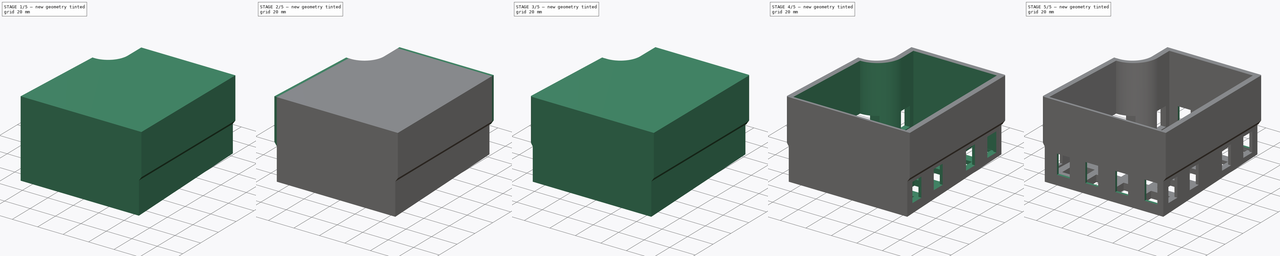
[diagram: build sequence overview — one tinted view per stage of 5, left to right]
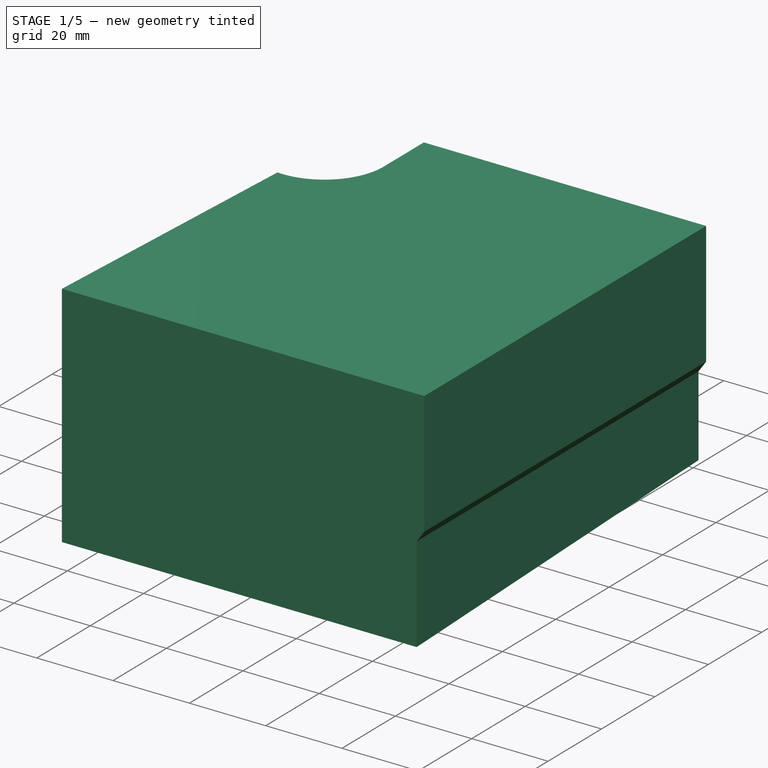
[diagram: stage 1 of 5 — iso view after this stage's code; geometry added in this stage tinted green]
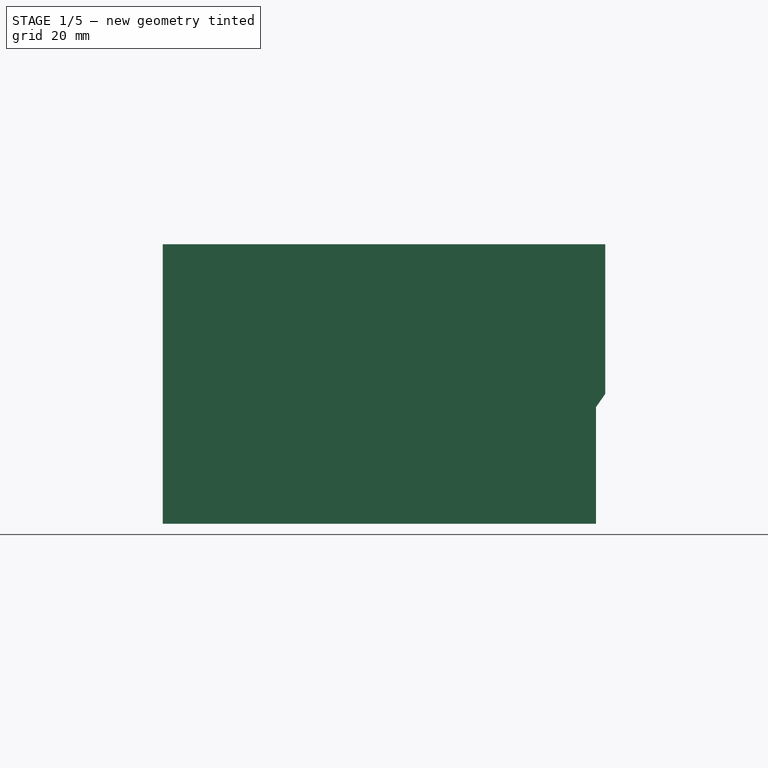
[diagram: stage 1 of 5 — front view after this stage's code; geometry added in this stage tinted green]
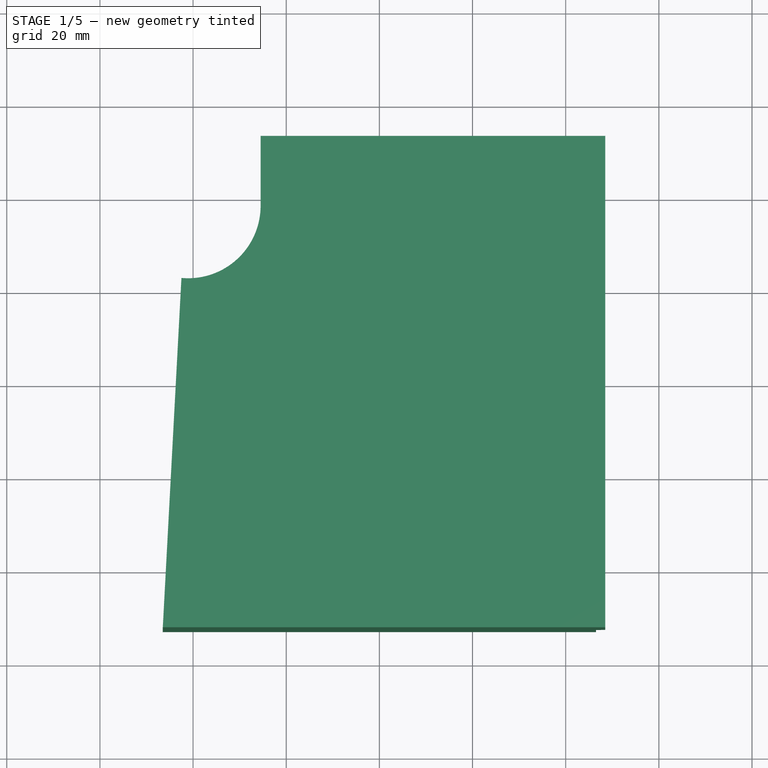
[diagram: stage 1 of 5 — top view after this stage's code; geometry added in this stage tinted green]
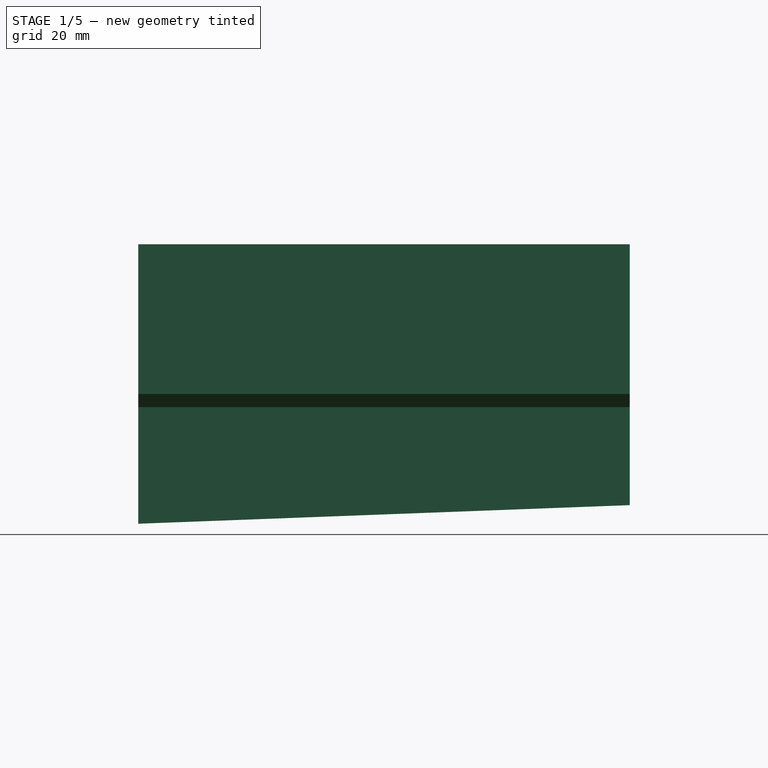
[diagram: stage 1 of 5 — right view after this stage's code; geometry added in this stage tinted green]
FCSTD DOCUMENT  (FreeCAD 0.16R6703 (Git))
Label: Essenza-Bucket-v3
License: FreeArt
LicenseURL: http://artlibre.org/licence/lal
objects: Sketcher::SketchObject×13, PartDesign::Pocket×9, PartDesign::Pad×4, PartDesign::Fillet×4
note: 43 computed .brp shape members not serialized (recipe doc carries the construction recipe); baked Part::Feature solids carry a one-line shape summary decoded from their .brp

FEATURE [Sketcher::SketchObject] Sketch
  sketch-geometry (6):
    g0: LineSegment StartX=-46.5 StartY=-52.75 StartZ=0 EndX=46.5 EndY=-52.75 EndZ=0
    g1: LineSegment StartX=46.5 StartY=-52.75 StartZ=0 EndX=46.5 EndY=52.75 EndZ=0
    g2: LineSegment StartX=46.5 StartY=52.75 StartZ=0 EndX=-25.5 EndY=52.75 EndZ=0
    g3: LineSegment StartX=-25.5 StartY=52.75 StartZ=0 EndX=-25.5 EndY=37.75 EndZ=0
    g4: ArcOfCircle CenterX=-41.0701 CenterY=37.7543 CenterZ=0 NormalX=0 NormalY=0 NormalZ=1 Radius=15.5701 StartAngle=4.62042 EndAngle=6.28291
    g5: LineSegment StartX=-42.5 StartY=22.25 StartZ=0 EndX=-46.5 EndY=-52.75 EndZ=0
  constraints (19):
    c: Horizontal(g0)
    c: Coincident(g0,g1)
    c: Vertical(g1)
    c: Coincident(g1,g2)
    c: Horizontal(g2)
    c: DistanceY(g0,g4) = 75
    c: DistanceX(g0,g0) = 93
    c: DistanceY(g1,g1) = 105.5
    c: DistanceX(g2,g2) = 72
    c: Symmetric(g0,g0,g-2)
    c: Symmetric(g1,g0,g-1)
    c: Vertical(g3)
    c: DistanceY(g3,g3) = 15
    c: Coincident(g4,g3)
    c: Coincident(g2,g3)
    c: Coincident(g5,g4)
    c: Coincident(g5,g0)
    c: Distance(g4,g1) = 89
    c: Radius(g4) = 15.5701
FEATURE [PartDesign::Pad] Pad
  Length = 60
  Length2 = 100
  Sketch = -> Sketch
  Type = 0
FEATURE [Sketcher::SketchObject] Sketch001
  Placement = pos=(46.5,0,0) rot=(0.57735,0.57735,0.57735;2.0944rad)
  Support = -> Pad [Face2]
  sketch-geometry (3):
    g0: LineSegment StartX=-52.7445 StartY=0 StartZ=0 EndX=52.9536 EndY=0 EndZ=0
    g1: LineSegment StartX=52.9536 StartY=0 StartZ=0 EndX=52.9536 EndY=4 EndZ=0
    g2: LineSegment StartX=52.9536 StartY=4 StartZ=0 EndX=-52.7445 EndY=0 EndZ=0
  constraints (7):
    c: PointOnObject(g0,g-1)
    c: PointOnObject(g0,g-1)
    c: Coincident(g0,g1)
    c: Vertical(g1)
    c: Coincident(g1,g2)
    c: Coincident(g2,g0)
    c: DistanceY(g1,g1) = 4
FEATURE [PartDesign::Pocket] Pocket
  Length = 5
  Sketch = -> Sketch001
  Type = 1
FEATURE [Sketcher::SketchObject] Sketch002
  Placement = pos=(0,-52.75,0) rot=(1,0,0;1.5708rad)
  Support = -> Pocket [Face1]
  sketch-geometry (4):
    g0: LineSegment StartX=46.4821 StartY=60 StartZ=0 EndX=46.4821 EndY=25 EndZ=0
    g1: LineSegment StartX=46.4821 StartY=25 StartZ=0 EndX=48.4821 EndY=27.8563 EndZ=0
    g2: LineSegment StartX=48.4821 StartY=27.8563 StartZ=0 EndX=48.4821 EndY=60 EndZ=0
    g3: LineSegment StartX=48.4821 StartY=60 StartZ=0 EndX=46.4821 EndY=60 EndZ=0
  constraints (12):
    c: Vertical(g0)
    c: Coincident(g0,g1)
    c: Coincident(g1,g2)
    c: Vertical(g2)
    c: Coincident(g2,g3)
    c: Horizontal(g3)
    c: Coincident(g0,g3)
    c: DistanceY(g-1,g0) = 60
    c: DistanceX(g-2,g0) = 46.4821
    c: DistanceY(g0,g0) = 35
    c: Angle(g1,g0) = 0.610865
    c: DistanceX(g3,g3) = 2
FEATURE [PartDesign::Pad] Pad001
  Length = 10
  Length2 = 100
  Reversed = true
  Sketch = -> Sketch002
  Type = 3
  UpToFace = -> Pocket [Face8]
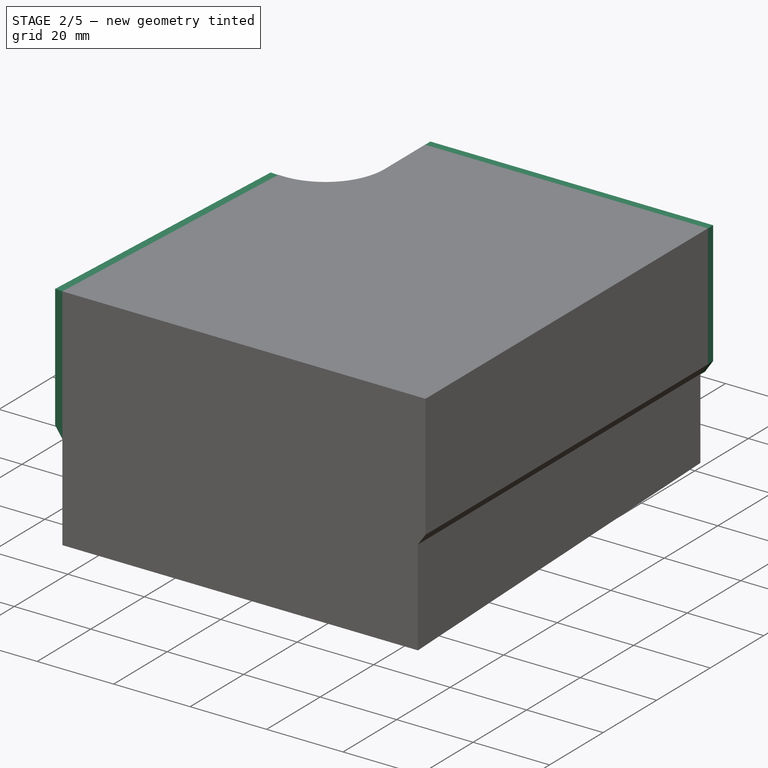
[diagram: stage 2 of 5 — iso view after this stage's code; geometry added in this stage tinted green]
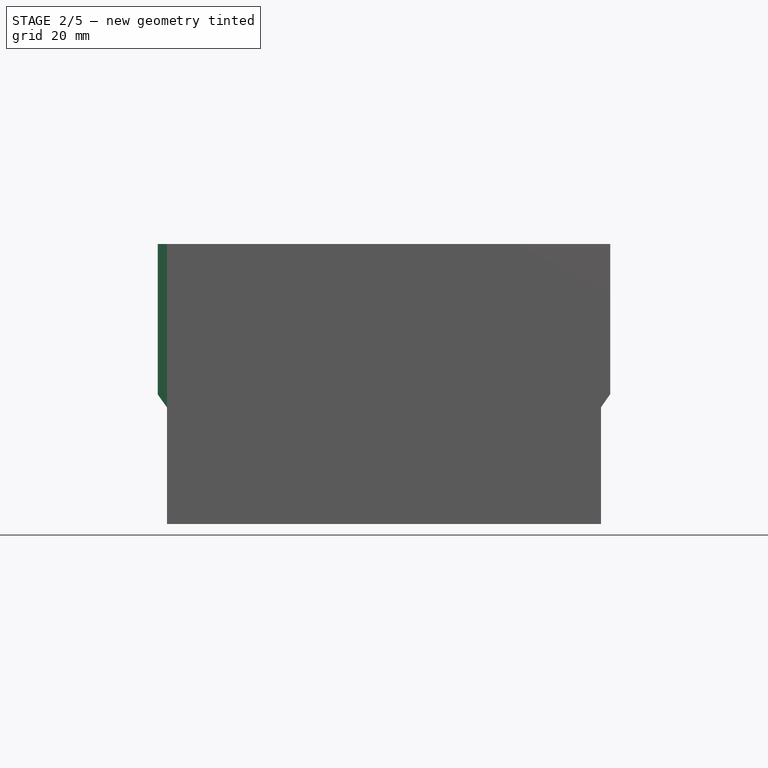
[diagram: stage 2 of 5 — front view after this stage's code; geometry added in this stage tinted green]
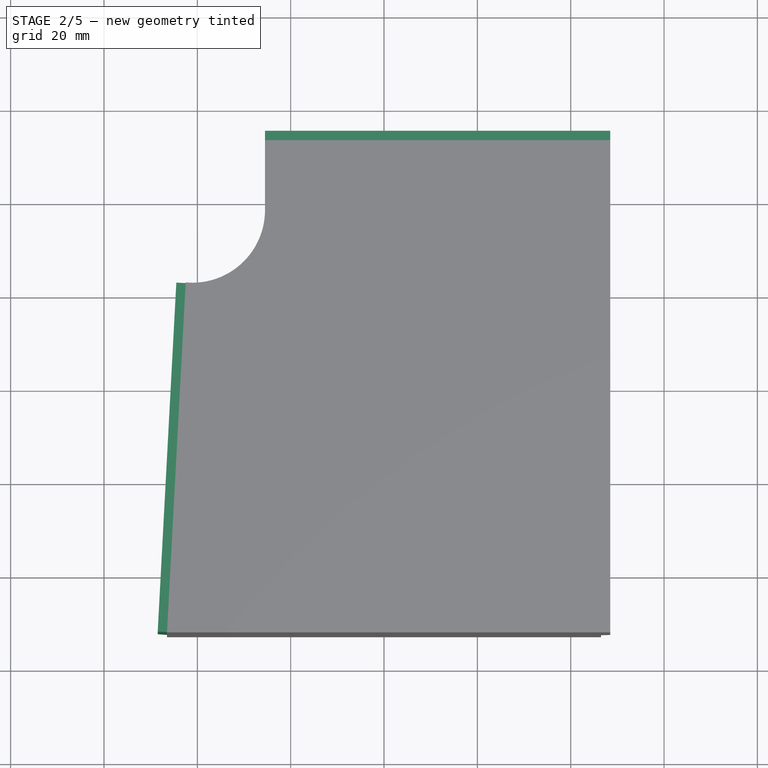
[diagram: stage 2 of 5 — top view after this stage's code; geometry added in this stage tinted green]
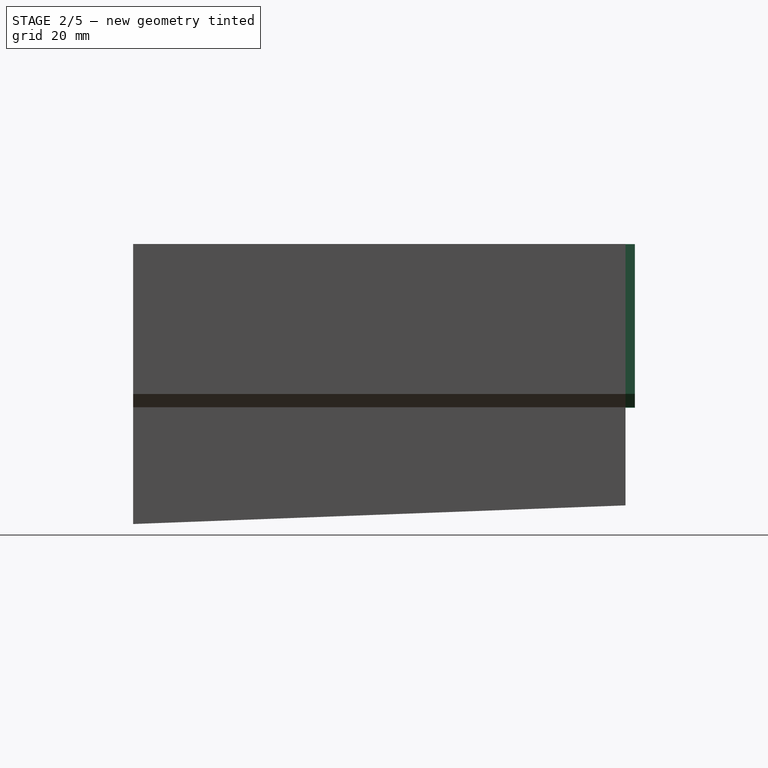
[diagram: stage 2 of 5 — right view after this stage's code; geometry added in this stage tinted green]
FEATURE [Sketcher::SketchObject] Sketch003
  Placement = pos=(-43.5628,2.32335,0) rot=(-0.556845,0.587335,0.587335;4.15776rad)
  Support = -> Pad001 [Face4]
  sketch-geometry (4):
    g0: LineSegment StartX=-19.8087 StartY=60 StartZ=0 EndX=55.0913 EndY=60 EndZ=0
    g1: LineSegment StartX=55.0913 StartY=60 StartZ=0 EndX=55.0913 EndY=25 EndZ=0
    g2: LineSegment StartX=55.0913 StartY=25 StartZ=0 EndX=-19.8087 EndY=25 EndZ=0
    g3: LineSegment StartX=-19.8087 StartY=25 StartZ=0 EndX=-19.8087 EndY=60 EndZ=0
  constraints (12):
    c: Coincident(g0,g1)
    c: Coincident(g1,g2)
    c: Coincident(g2,g3)
    c: Coincident(g3,g0)
    c: Horizontal(g0)
    c: Horizontal(g2)
    c: Vertical(g1)
    c: Vertical(g3)
    c: Equal(g1,g3)
    c: DistanceY(g1,g1) = 35
    c: DistanceY(g-1,g0) = 60
    c: DistanceX(g0,g0) = 74.9
FEATURE [PartDesign::Pad] Pad002
  Length = 2
  Length2 = 100
  Sketch = -> Sketch003
  Type = 0
FEATURE [Sketcher::SketchObject] Sketch004
  Placement = pos=(-2.93403,-55.0131,0) rot=(0.999291,-0.026629,-0.026629;1.57151rad)
  Support = -> Pad002 [Face11]
  sketch-geometry (4):
    g0: LineSegment StartX=-43.6049 StartY=24.9467 StartZ=0 EndX=-43.6049 EndY=27.8525 EndZ=0
    g1: LineSegment StartX=-45.6791 StartY=27.8525 StartZ=0 EndX=-43.6049 EndY=24.9467 EndZ=0
    g2: LineSegment StartX=-43.6049 StartY=24.9467 StartZ=0 EndX=-45.6791 EndY=24.9467 EndZ=0
    g3: LineSegment StartX=-45.6791 StartY=24.9467 StartZ=0 EndX=-45.6791 EndY=27.8525 EndZ=0
  constraints (7):
    c: Vertical(g0)
    c: Coincident(g1,g0)
    c: Coincident(g1,g2)
    c: Horizontal(g2)
    c: Coincident(g2,g3)
    c: Coincident(g3,g1)
    c: Vertical(g3)
FEATURE [PartDesign::Pocket] Pocket001
  Length = 5
  Sketch = -> Sketch004
  Type = 1
FEATURE [Sketcher::SketchObject] Sketch005
  Placement = pos=(0,52.75,0) rot=(0,0.707107,0.707107;3.14159rad)
  Support = -> Pocket001 [Face9]
  sketch-geometry (4):
    g0: LineSegment StartX=-48.4621 StartY=59.971 StartZ=0 EndX=25.5123 EndY=59.971 EndZ=0
    g1: LineSegment StartX=25.5123 StartY=59.971 StartZ=0 EndX=25.5123 EndY=24.9189 EndZ=0
    g2: LineSegment StartX=25.5123 StartY=24.9189 StartZ=0 EndX=-48.4621 EndY=24.9189 EndZ=0
    g3: LineSegment StartX=-48.4621 StartY=24.9189 StartZ=0 EndX=-48.4621 EndY=59.971 EndZ=0
  constraints (14):
    c: Coincident(g0,g1)
    c: Coincident(g1,g2)
    c: Coincident(g2,g3)
    c: Coincident(g3,g0)
    c: Horizontal(g0)
    c: Horizontal(g2)
    c: Vertical(g1)
    c: Vertical(g3)
    c: Equal(g0,g2)
    c: Equal(g3,g1)
    c: DistanceX(g-2,g0) = -48.4621
    c: DistanceX(g-2,g0) = 25.5123
    c: DistanceY(g-1,g0) = 59.971
    c: DistanceY(g-1,g2) = 24.9189
FEATURE [PartDesign::Pad] Pad003
  Length = 2
  Length2 = 100
  Sketch = -> Sketch005
  Type = 0
FEATURE [Sketcher::SketchObject] Sketch006
  Placement = pos=(0,52.75,0) rot=(1,0,0;1.5708rad)
  Support = -> Pad003 [Face10]
  sketch-geometry (4):
    g0: LineSegment StartX=46.5295 StartY=24.8761 StartZ=0 EndX=46.483 EndY=25.0272 EndZ=0
    g1: LineSegment StartX=46.483 StartY=25.0272 StartZ=0 EndX=48.483 EndY=27.9182 EndZ=0
    g2: LineSegment StartX=48.483 StartY=27.9182 StartZ=0 EndX=48.483 EndY=24.8761 EndZ=0
    g3: LineSegment StartX=48.483 StartY=24.8761 StartZ=0 EndX=46.5295 EndY=24.8761 EndZ=0
  constraints (6):
    c: Coincident(g0,g1)
    c: Coincident(g1,g2)
    c: Vertical(g2)
    c: Coincident(g2,g3)
    c: Coincident(g3,g0)
    c: Horizontal(g3)
FEATURE [PartDesign::Pocket] Pocket002
  Length = 5
  Sketch = -> Sketch006
  Type = 0
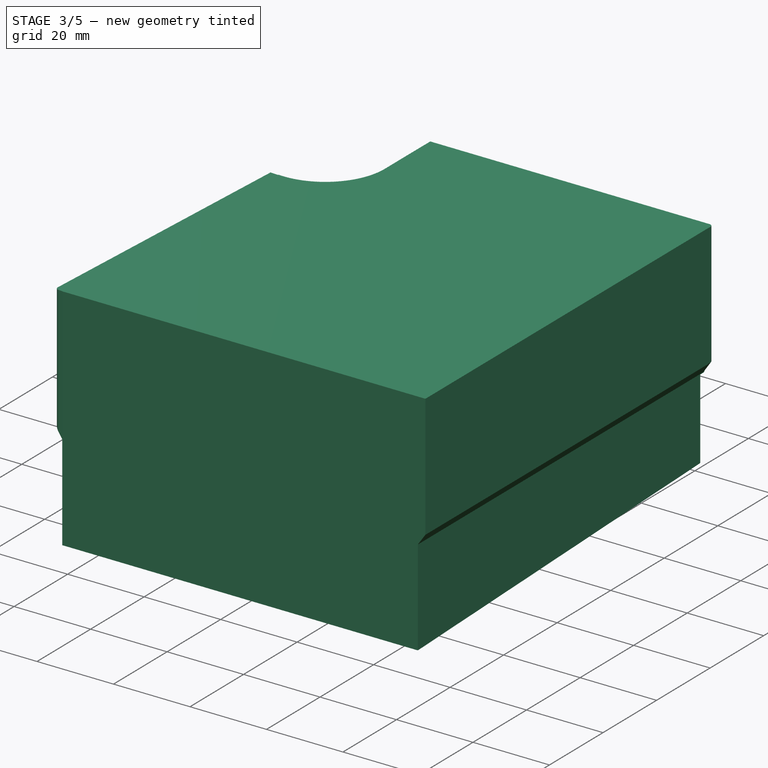
[diagram: stage 3 of 5 — iso view after this stage's code; geometry added in this stage tinted green]
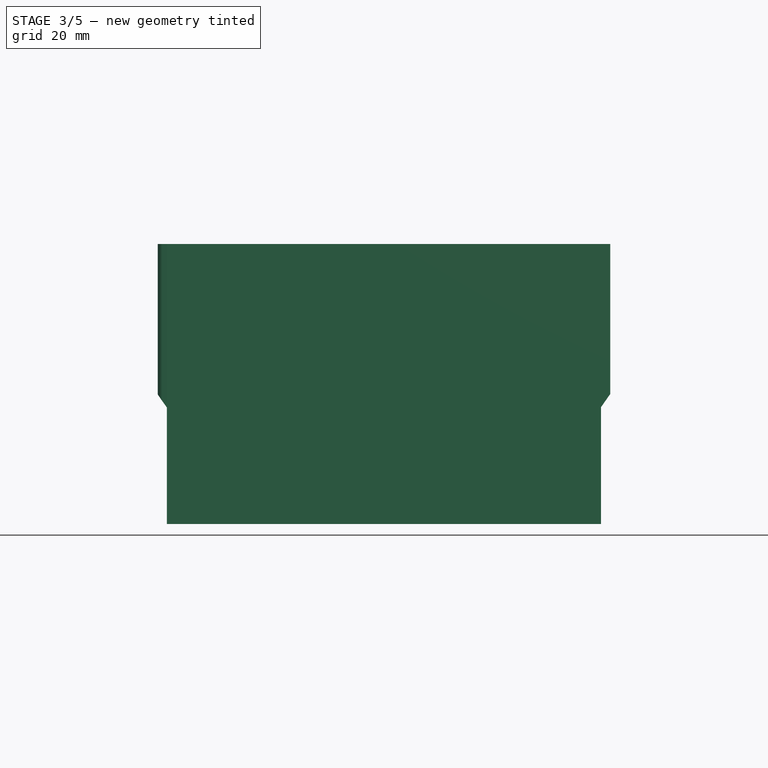
[diagram: stage 3 of 5 — front view after this stage's code; geometry added in this stage tinted green]
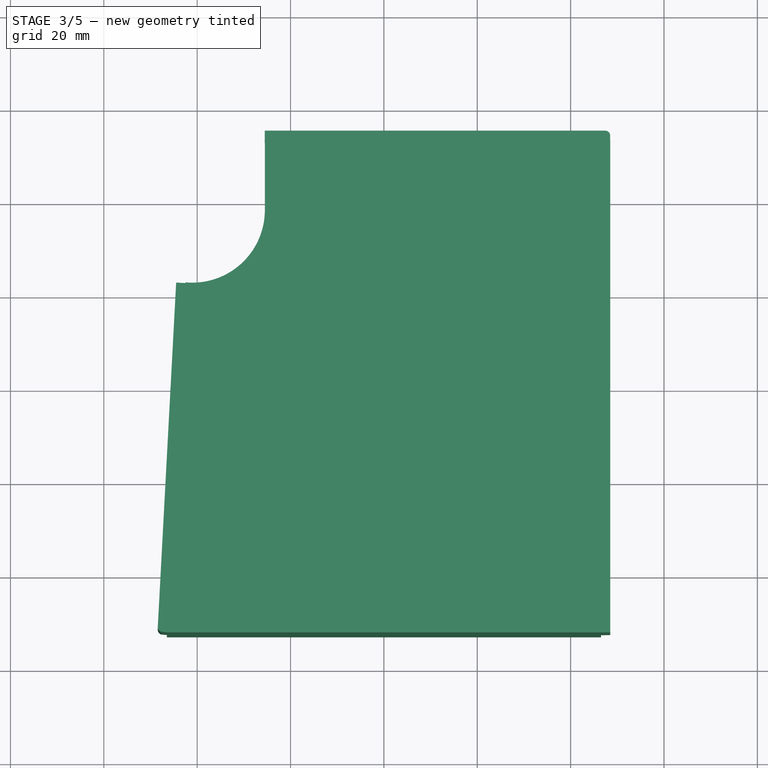
[diagram: stage 3 of 5 — top view after this stage's code; geometry added in this stage tinted green]
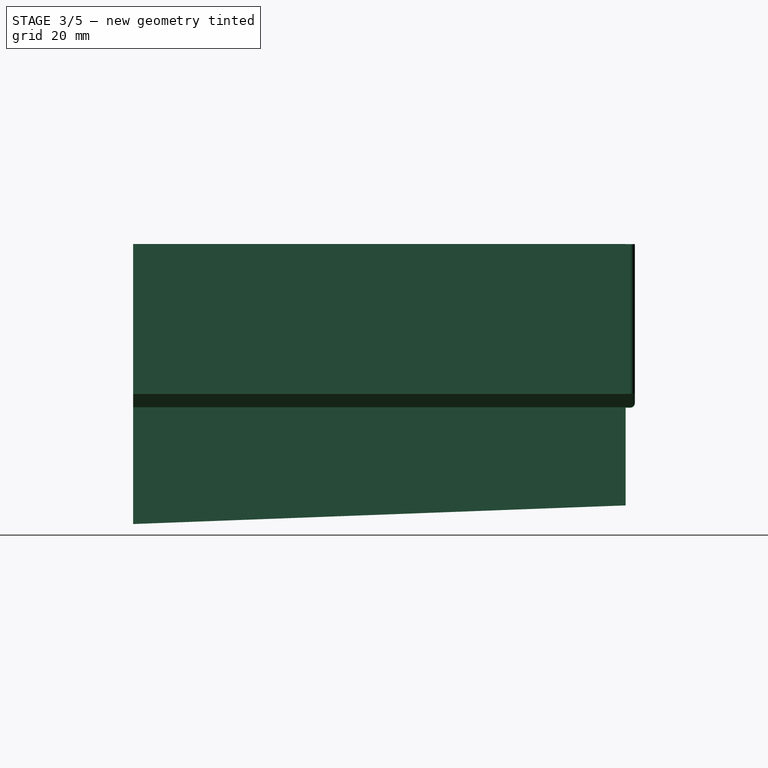
[diagram: stage 3 of 5 — right view after this stage's code; geometry added in this stage tinted green]
FEATURE [PartDesign::Fillet] Fillet
  Base = -> Pocket002 [Edge73,Edge68]
  Radius = 3
FEATURE [PartDesign::Fillet] Fillet001
  Base = -> Fillet [Edge23]
  Radius = 3
FEATURE [PartDesign::Fillet] Fillet002
  Base = -> Fillet001 [Edge79]
  Radius = 2
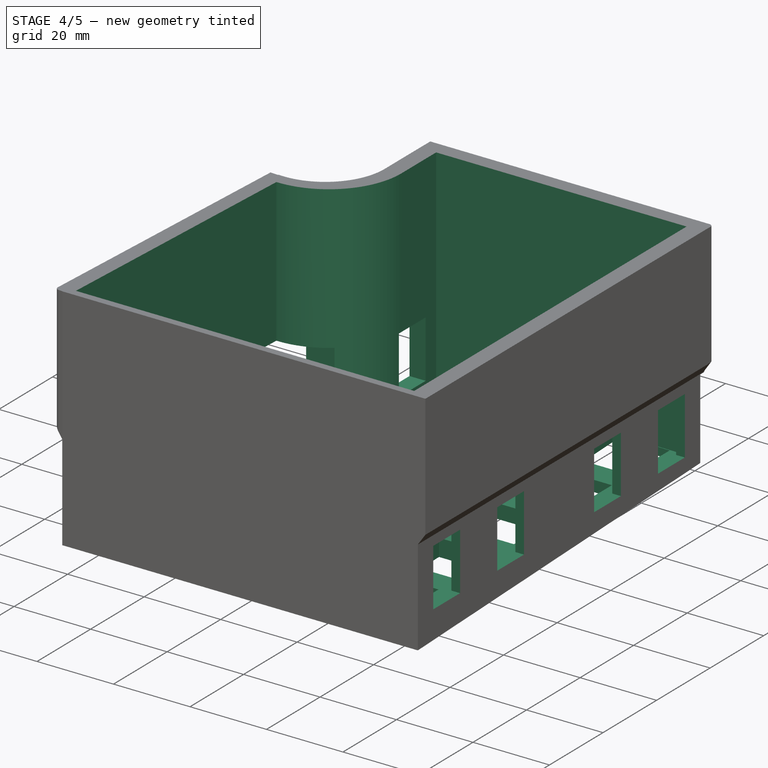
[diagram: stage 4 of 5 — iso view after this stage's code; geometry added in this stage tinted green]
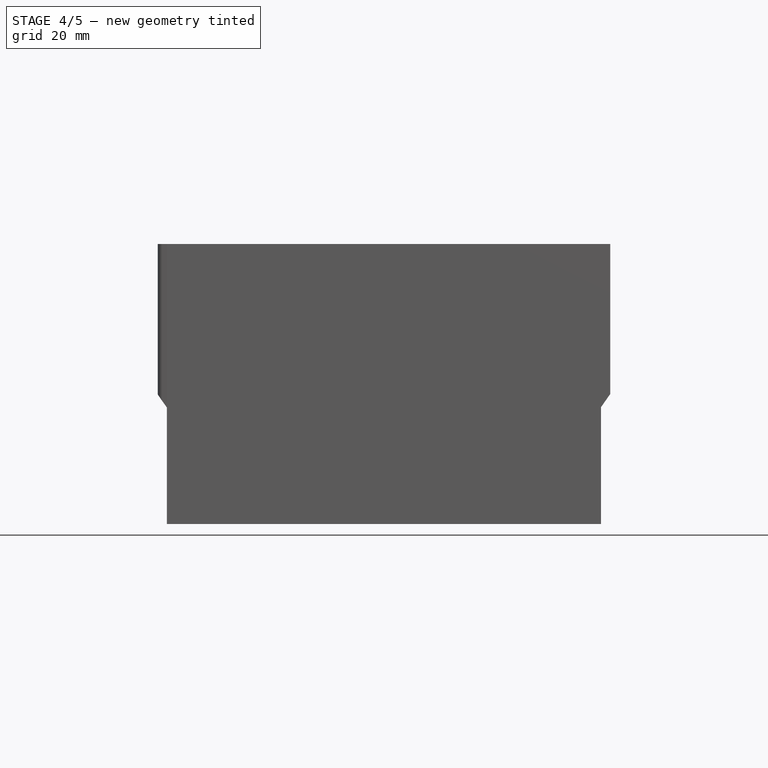
[diagram: stage 4 of 5 — front view after this stage's code; geometry added in this stage tinted green]
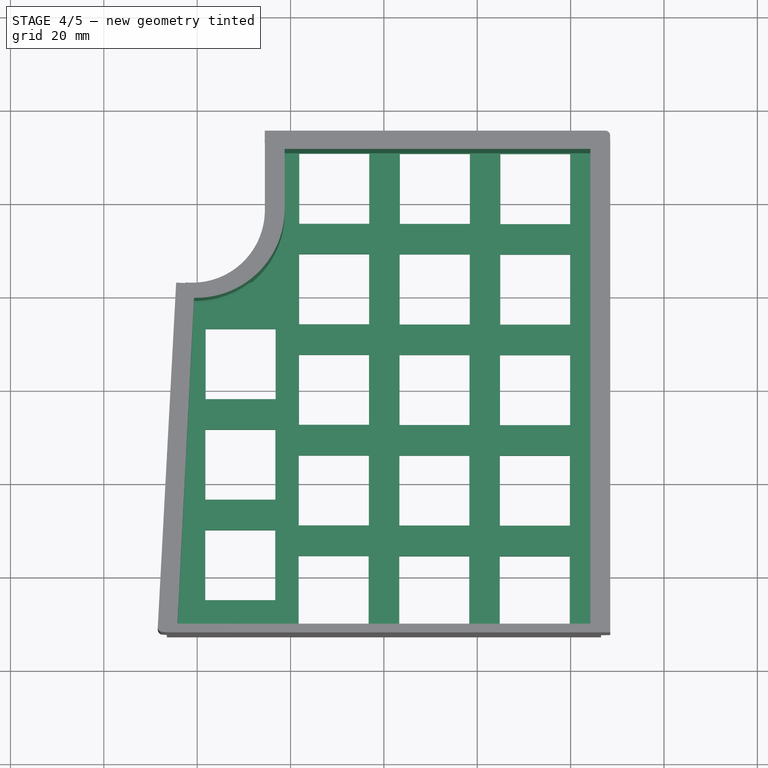
[diagram: stage 4 of 5 — top view after this stage's code; geometry added in this stage tinted green]
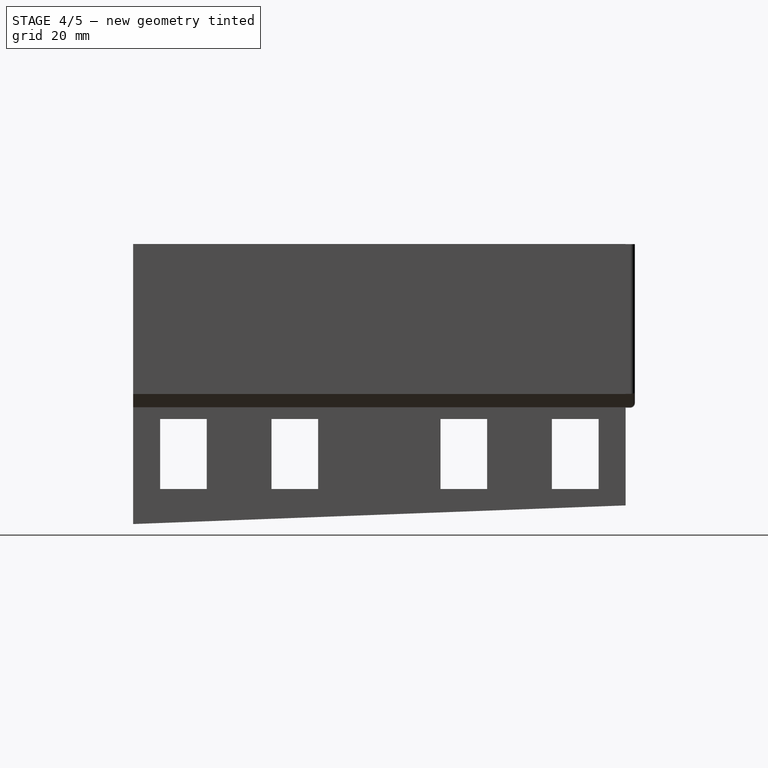
[diagram: stage 4 of 5 — right view after this stage's code; geometry added in this stage tinted green]
FEATURE [Sketcher::SketchObject] Sketch007
  Placement = pos=(0,0,60) rot=(0,0,1;0rad)
  Support = -> Fillet002 [Face1]
  sketch-geometry (6):
    g0: LineSegment StartX=-40.6773 StartY=18.9402 StartZ=0 EndX=-44.235 EndY=-50.8637 EndZ=0
    g1: LineSegment StartX=-44.235 StartY=-50.8637 StartZ=0 EndX=44.235 EndY=-50.8637 EndZ=0
    g2: LineSegment StartX=44.235 StartY=-50.8637 StartZ=0 EndX=44.235 EndY=50.8637 EndZ=0
    g3: LineSegment StartX=44.235 StartY=50.8637 StartZ=0 EndX=-21.2656 EndY=50.8637 EndZ=0
    g4: LineSegment StartX=-21.2656 StartY=50.8637 StartZ=0 EndX=-21.2656 EndY=18.9402 EndZ=0
    g5: LineSegment StartX=-21.2656 StartY=18.9402 StartZ=0 EndX=-40.6773 EndY=18.9402 EndZ=0
  constraints (16):
    c: Coincident(g0,g1)
    c: Horizontal(g1)
    c: Coincident(g1,g2)
    c: Vertical(g2)
    c: Coincident(g2,g3)
    c: Horizontal(g3)
    c: Coincident(g3,g4)
    c: Vertical(g4)
    c: Coincident(g4,g5)
    c: Coincident(g5,g0)
    c: Symmetric(g1,g2,g-1)
    c: Symmetric(g0,g1,g-2)
    c: Distance(g-1,g2) = 44.235
    c: DistanceX(g-2,g3) = -21.2656
    c: DistanceX(g-2,g0) = -40.6773
    c: Parallel(g5,g-1)
FEATURE [PartDesign::Pocket] Pocket003
  Length = 54
  Sketch = -> Sketch007
  Type = 0
FEATURE [PartDesign::Fillet] Fillet003
  Base = -> Pocket003 [Edge60]
  Radius = 20
FEATURE [Sketcher::SketchObject] Sketch008
  Placement = pos=(0,0,6) rot=(0,0,1;0rad)
  Support = -> Fillet003 [Face19]
  sketch-geometry (91):
    g0: LineSegment StartX=24.9479 StartY=50.6829 StartZ=0 EndX=39.9479 EndY=50.6829 EndZ=0
    g1: LineSegment StartX=39.9479 StartY=50.6829 StartZ=0 EndX=39.9479 EndY=35.6829 EndZ=0
    g2: LineSegment StartX=39.9479 StartY=35.6829 StartZ=0 EndX=24.9479 EndY=35.6829 EndZ=0
    g3: LineSegment StartX=24.9479 StartY=35.6829 StartZ=0 EndX=24.9479 EndY=50.6829 EndZ=0
    g4: LineSegment StartX=24.914 StartY=29.1452 StartZ=0 EndX=39.914 EndY=29.1452 EndZ=0
    g5: LineSegment StartX=39.914 StartY=29.1452 StartZ=0 EndX=39.914 EndY=14.1452 EndZ=0
    g6: LineSegment StartX=39.914 StartY=14.1452 StartZ=0 EndX=24.914 EndY=14.1452 EndZ=0
    g7: LineSegment StartX=24.914 StartY=14.1452 StartZ=0 EndX=24.914 EndY=29.1452 EndZ=0
    g8: LineSegment [constr] StartX=24.9479 StartY=50.6829 StartZ=0 EndX=24.914 EndY=29.1452 EndZ=0
    g9: LineSegment StartX=24.8801 StartY=7.60758 StartZ=0 EndX=39.8801 EndY=7.60758 EndZ=0
    g10: LineSegment StartX=39.8801 StartY=7.60758 StartZ=0 EndX=39.8801 EndY=-7.39242 EndZ=0
    g11: LineSegment StartX=39.8801 StartY=-7.39242 StartZ=0 EndX=24.8801 EndY=-7.39242 EndZ=0
    g12: LineSegment StartX=24.8801 StartY=-7.39242 StartZ=0 EndX=24.8801 EndY=7.60758 EndZ=0
    g13: LineSegment [constr] StartX=24.914 StartY=29.1452 StartZ=0 EndX=24.8801 EndY=7.60758 EndZ=0
    g14: LineSegment StartX=24.8462 StartY=-13.9301 StartZ=0 EndX=39.8462 EndY=-13.9301 EndZ=0
    g15: LineSegment StartX=39.8462 StartY=-13.9301 StartZ=0 EndX=39.8462 EndY=-28.9301 EndZ=0
    g16: LineSegment StartX=39.8462 StartY=-28.9301 StartZ=0 EndX=24.8462 EndY=-28.9301 EndZ=0
    g17: LineSegment StartX=24.8462 StartY=-28.9301 StartZ=0 EndX=24.8462 EndY=-13.9301 EndZ=0
    g18: LineSegment [constr] StartX=24.8801 StartY=7.60758 StartZ=0 EndX=24.8462 EndY=-13.9301 EndZ=0
    g19: LineSegment StartX=24.8123 StartY=-35.4678 StartZ=0 EndX=39.8123 EndY=-35.4678 EndZ=0
    g20: LineSegment StartX=39.8123 StartY=-35.4678 StartZ=0 EndX=39.8123 EndY=-50.4678 EndZ=0
    g21: LineSegment StartX=39.8123 StartY=-50.4678 StartZ=0 EndX=24.8123 EndY=-50.4678 EndZ=0
    g22: LineSegment StartX=24.8123 StartY=-50.4678 StartZ=0 EndX=24.8123 EndY=-35.4678 EndZ=0
    g23: LineSegment [constr] StartX=24.8462 StartY=-13.9301 StartZ=0 EndX=24.8123 EndY=-35.4678 EndZ=0
    g24: LineSegment StartX=3.41018 StartY=50.7168 StartZ=0 EndX=18.4102 EndY=50.7168 EndZ=0
    g25: LineSegment StartX=18.4102 StartY=50.7168 StartZ=0 EndX=18.4102 EndY=35.7168 EndZ=0
    g26: LineSegment StartX=18.4102 StartY=35.7168 StartZ=0 EndX=3.41018 EndY=35.7168 EndZ=0
    g27: LineSegment StartX=3.41018 StartY=35.7168 StartZ=0 EndX=3.41018 EndY=50.7168 EndZ=0
    g28: LineSegment [constr] StartX=24.9479 StartY=50.6829 StartZ=0 EndX=3.41018 EndY=50.7168 EndZ=0
    g29: LineSegment StartX=3.3763 StartY=29.1791 StartZ=0 EndX=18.3763 EndY=29.1791 EndZ=0
    g30: LineSegment StartX=18.3763 StartY=29.1791 StartZ=0 EndX=18.3763 EndY=14.1791 EndZ=0
    g31: LineSegment StartX=18.3763 StartY=14.1791 StartZ=0 EndX=3.3763 EndY=14.1791 EndZ=0
    g32: LineSegment StartX=3.3763 StartY=14.1791 StartZ=0 EndX=3.3763 EndY=29.1791 EndZ=0
    g33: LineSegment [constr] StartX=3.41018 StartY=50.7168 StartZ=0 EndX=3.3763 EndY=29.1791 EndZ=0
    g34: LineSegment StartX=3.34241 StartY=7.64146 StartZ=0 EndX=18.3424 EndY=7.64146 EndZ=0
    g35: LineSegment StartX=18.3424 StartY=7.64146 StartZ=0 EndX=18.3424 EndY=-7.35854 EndZ=0
    g36: LineSegment StartX=18.3424 StartY=-7.35854 StartZ=0 EndX=3.34241 EndY=-7.35854 EndZ=0
    g37: LineSegment StartX=3.34241 StartY=-7.35854 StartZ=0 EndX=3.34241 EndY=7.64146 EndZ=0
    g38: LineSegment [constr] StartX=3.3763 StartY=29.1791 StartZ=0 EndX=3.34241 EndY=7.64146 EndZ=0
    g39: LineSegment StartX=3.30853 StartY=-13.8962 StartZ=0 EndX=18.3085 EndY=-13.8962 EndZ=0
    g40: LineSegment StartX=18.3085 StartY=-13.8962 StartZ=0 EndX=18.3085 EndY=-28.8962 EndZ=0
    g41: LineSegment StartX=18.3085 StartY=-28.8962 StartZ=0 EndX=3.30853 EndY=-28.8962 EndZ=0
    g42: LineSegment StartX=3.30853 StartY=-28.8962 StartZ=0 EndX=3.30853 EndY=-13.8962 EndZ=0
    g43: LineSegment [constr] StartX=3.34241 StartY=7.64146 StartZ=0 EndX=3.30853 EndY=-13.8962 EndZ=0
    g44: LineSegment StartX=3.27465 StartY=-35.4339 StartZ=0 EndX=18.2746 EndY=-35.4339 EndZ=0
    g45: LineSegment StartX=18.2746 StartY=-35.4339 StartZ=0 EndX=18.2746 EndY=-50.4339 EndZ=0
    g46: LineSegment StartX=18.2746 StartY=-50.4339 StartZ=0 EndX=3.27465 EndY=-50.4339 EndZ=0
    g47: LineSegment StartX=3.27465 StartY=-50.4339 StartZ=0 EndX=3.27465 EndY=-35.4339 EndZ=0
    g48: LineSegment [constr] StartX=3.30853 StartY=-13.8962 StartZ=0 EndX=3.27465 EndY=-35.4339 EndZ=0
    g49: LineSegment StartX=-18.1275 StartY=50.7507 StartZ=0 EndX=-3.12749 EndY=50.7507 EndZ=0
    g50: LineSegment StartX=-3.12749 StartY=50.7507 StartZ=0 EndX=-3.12749 EndY=35.7507 EndZ=0
    g51: LineSegment StartX=-3.12749 StartY=35.7507 StartZ=0 EndX=-18.1275 EndY=35.7507 EndZ=0
    g52: LineSegment StartX=-18.1275 StartY=35.7507 StartZ=0 EndX=-18.1275 EndY=50.7507 EndZ=0
    g53: LineSegment [constr] StartX=3.41018 StartY=50.7168 StartZ=0 EndX=-18.1275 EndY=50.7507 EndZ=0
    g54: LineSegment StartX=-18.1614 StartY=29.213 StartZ=0 EndX=-3.16137 EndY=29.213 EndZ=0
    g55: LineSegment StartX=-3.16137 StartY=29.213 StartZ=0 EndX=-3.16137 EndY=14.213 EndZ=0
    g56: LineSegment StartX=-3.16137 StartY=14.213 StartZ=0 EndX=-18.1614 EndY=14.213 EndZ=0
    g57: LineSegment StartX=-18.1614 StartY=14.213 StartZ=0 EndX=-18.1614 EndY=29.213 EndZ=0
    g58: LineSegment [constr] StartX=-18.1275 StartY=50.7507 StartZ=0 EndX=-18.1614 EndY=29.213 EndZ=0
    g59: LineSegment StartX=-18.1953 StartY=7.67534 StartZ=0 EndX=-3.19526 EndY=7.67534 EndZ=0
    g60: LineSegment StartX=-3.19526 StartY=7.67534 StartZ=0 EndX=-3.19526 EndY=-7.32466 EndZ=0
    g61: LineSegment StartX=-3.19526 StartY=-7.32466 StartZ=0 EndX=-18.1953 EndY=-7.32466 EndZ=0
    g62: LineSegment StartX=-18.1953 StartY=-7.32466 StartZ=0 EndX=-18.1953 EndY=7.67534 EndZ=0
    g63: LineSegment [constr] StartX=-18.1614 StartY=29.213 StartZ=0 EndX=-18.1953 EndY=7.67534 EndZ=0
    g64: LineSegment StartX=-18.2291 StartY=-13.8623 StartZ=0 EndX=-3.22914 EndY=-13.8623 EndZ=0
    g65: LineSegment StartX=-3.22914 StartY=-13.8623 StartZ=0 EndX=-3.22914 EndY=-28.8623 EndZ=0
    g66: LineSegment StartX=-3.22914 StartY=-28.8623 StartZ=0 EndX=-18.2291 EndY=-28.8623 EndZ=0
    g67: LineSegment StartX=-18.2291 StartY=-28.8623 StartZ=0 EndX=-18.2291 EndY=-13.8623 EndZ=0
    g68: LineSegment [constr] StartX=-18.1953 StartY=7.67534 StartZ=0 EndX=-18.2291 EndY=-13.8623 EndZ=0
    g69: LineSegment StartX=-18.263 StartY=-35.4 StartZ=0 EndX=-3.26302 EndY=-35.4 EndZ=0
    g70: LineSegment StartX=-3.26302 StartY=-35.4 StartZ=0 EndX=-3.26302 EndY=-50.4 EndZ=0
    g71: LineSegment StartX=-3.26302 StartY=-50.4 StartZ=0 EndX=-18.263 EndY=-50.4 EndZ=0
    g72: LineSegment StartX=-18.263 StartY=-50.4 StartZ=0 EndX=-18.263 EndY=-35.4 EndZ=0
    g73: LineSegment [constr] StartX=-18.2291 StartY=-13.8623 StartZ=0 EndX=-18.263 EndY=-35.4 EndZ=0
    g74: LineSegment [constr] StartX=-18.1275 StartY=50.7507 StartZ=0 EndX=-39.6652 EndY=50.7846 EndZ=0
    g75: LineSegment [constr] StartX=-38.3019 StartY=48.2562 StartZ=0 EndX=-38.3358 EndY=26.7185 EndZ=0
    g76: LineSegment StartX=-38.2031 StartY=13.1844 StartZ=0 EndX=-23.2031 EndY=13.1844 EndZ=0
    g77: LineSegment StartX=-23.2031 StartY=13.1844 StartZ=0 EndX=-23.2031 EndY=-1.81557 EndZ=0
    g78: LineSegment StartX=-23.2031 StartY=-1.81557 StartZ=0 EndX=-38.2031 EndY=-1.81557 EndZ=0
    g79: LineSegment StartX=-38.2031 StartY=-1.81557 StartZ=0 EndX=-38.2031 EndY=13.1844 EndZ=0
    g80: LineSegment [constr] StartX=-38.1693 StartY=34.7221 StartZ=0 EndX=-38.2031 EndY=13.1844 EndZ=0
    g81: LineSegment StartX=-38.237 StartY=-8.35324 StartZ=0 EndX=-23.237 EndY=-8.35324 EndZ=0
    g82: LineSegment StartX=-23.237 StartY=-8.35324 StartZ=0 EndX=-23.237 EndY=-23.3532 EndZ=0
    g83: LineSegment StartX=-23.237 StartY=-23.3532 StartZ=0 EndX=-38.237 EndY=-23.3532 EndZ=0
    g84: LineSegment StartX=-38.237 StartY=-23.3532 StartZ=0 EndX=-38.237 EndY=-8.35324 EndZ=0
    g85: LineSegment [constr] StartX=-38.2031 StartY=13.1844 StartZ=0 EndX=-38.237 EndY=-8.35324 EndZ=0
    g86: LineSegment StartX=-38.2709 StartY=-29.8909 StartZ=0 EndX=-23.2709 EndY=-29.8909 EndZ=0
    g87: LineSegment StartX=-23.2709 StartY=-29.8909 StartZ=0 EndX=-23.2709 EndY=-44.8909 EndZ=0
    g88: LineSegment StartX=-23.2709 StartY=-44.8909 StartZ=0 EndX=-38.2709 EndY=-44.8909 EndZ=0
    g89: LineSegment StartX=-38.2709 StartY=-44.8909 StartZ=0 EndX=-38.2709 EndY=-29.8909 EndZ=0
    g90: LineSegment [constr] StartX=-38.237 StartY=-8.35324 StartZ=0 EndX=-38.2709 EndY=-29.8909 EndZ=0
  constraints (288):
    c: Coincident(g0,g1)
    c: Coincident(g1,g2)
    c: Coincident(g2,g3)
    c: Coincident(g3,g0)
    c: Horizontal(g0)
    c: Horizontal(g2)
    c: Vertical(g1)
    c: Vertical(g3)
    c: DistanceX(g0,g0) = 15
    c: Equal(g0,g2)
    c: Equal(g3,g1)
    c: DistanceY(g3,g3) = 15
    c: Coincident(g4,g5)
    c: Coincident(g5,g6)
    c: Coincident(g6,g7)
    c: Coincident(g7,g4)
    c: Horizontal(g4)
    c: Horizontal(g6)
    c: Vertical(g5)
    c: Vertical(g7)
    c: DistanceX(g4,g4) = 15
    c: Equal(g4,g6)
    c: Equal(g7,g5)
    c: DistanceY(g7,g7) = 15
    c: Coincident(g0,g8)
    c: Coincident(g4,g8)
    c: Distance(g8) = 21.5377
    c: Angle(g8) = -1.57237
    c: Coincident(g9,g10)
    c: Coincident(g10,g11)
    c: Coincident(g11,g12)
    c: Coincident(g12,g9)
    c: Horizontal(g9)
    c: Horizontal(g11)
    c: Vertical(g10)
    c: Vertical(g12)
    c: DistanceX(g9,g9) = 15
    c: Equal(g9,g11)
    c: Equal(g12,g10)
    c: DistanceY(g12,g12) = 15
    c: Coincident(g4,g13)
    c: Coincident(g9,g13)
    c: Equal(g8,g13)
    c: Parallel(g13,g8)
    c: Coincident(g14,g15)
    c: Coincident(g15,g16)
    c: Coincident(g16,g17)
    c: Coincident(g17,g14)
    c: Horizontal(g14)
    c: Horizontal(g16)
    c: Vertical(g15)
    c: Vertical(g17)
    c: DistanceX(g14,g14) = 15
    c: Equal(g14,g16)
    c: Equal(g17,g15)
    c: DistanceY(g17,g17) = 15
    c: Coincident(g9,g18)
    c: Coincident(g14,g18)
    c: Equal(g8,g18)
    c: Parallel(g18,g8)
    c: Coincident(g19,g20)
    c: Coincident(g20,g21)
    c: Coincident(g21,g22)
    c: Coincident(g22,g19)
    c: Horizontal(g19)
    c: Horizontal(g21)
    c: Vertical(g20)
    c: Vertical(g22)
    c: DistanceX(g19,g19) = 15
    c: Equal(g19,g21)
    c: Equal(g22,g20)
    c: DistanceY(g22,g22) = 15
    c: Coincident(g14,g23)
    c: Coincident(g19,g23)
    c: Equal(g8,g23)
    c: Parallel(g23,g8)
    c: Coincident(g24,g25)
    c: Coincident(g25,g26)
    c: Coincident(g26,g27)
    c: Coincident(g27,g24)
    c: Horizontal(g24)
    c: Horizontal(g26)
    c: Vertical(g25)
    c: Vertical(g27)
    c: DistanceX(g24,g24) = 15
    c: Equal(g24,g26)
    c: Equal(g27,g25)
    c: DistanceY(g27,g27) = 15
    c: Coincident(g0,g28)
    c: Coincident(g24,g28)
    c: Equal(g28,g8)
    c: Perpendicular(g28,g8)
    c: Coincident(g29,g30)
    c: Coincident(g30,g31)
    c: Coincident(g31,g32)
    c: Coincident(g32,g29)
    c: Horizontal(g29)
    c: Horizontal(g31)
    c: Vertical(g30)
    c: Vertical(g32)
    c: DistanceX(g29,g29) = 15
    c: Equal(g29,g31)
    c: Equal(g32,g30)
    c: DistanceY(g32,g32) = 15
    c: Coincident(g24,g33)
    c: Coincident(g29,g33)
    c: Equal(g8,g33)
    c: Parallel(g33,g8)
    c: Coincident(g34,g35)
    c: Coincident(g35,g36)
    c: Coincident(g36,g37)
    c: Coincident(g37,g34)
    c: Horizontal(g34)
    c: Horizontal(g36)
    c: Vertical(g35)
    c: Vertical(g37)
    c: DistanceX(g34,g34) = 15
    c: Equal(g34,g36)
    c: Equal(g37,g35)
    c: DistanceY(g37,g37) = 15
    c: Coincident(g29,g38)
    c: Coincident(g34,g38)
    c: Equal(g8,g38)
    c: Parallel(g38,g8)
    c: Coincident(g39,g40)
    c: Coincident(g40,g41)
    c: Coincident(g41,g42)
    c: Coincident(g42,g39)
    c: Horizontal(g39)
    c: Horizontal(g41)
    c: Vertical(g40)
    c: Vertical(g42)
    c: DistanceX(g39,g39) = 15
    c: Equal(g39,g41)
    c: Equal(g42,g40)
    c: DistanceY(g42,g42) = 15
    c: Coincident(g34,g43)
    c: Coincident(g39,g43)
    c: Equal(g8,g43)
    c: Parallel(g43,g8)
    c: Coincident(g44,g45)
    c: Coincident(g45,g46)
    c: Coincident(g46,g47)
    c: Coincident(g47,g44)
    c: Horizontal(g44)
    c: Horizontal(g46)
    c: Vertical(g45)
    c: Vertical(g47)
    c: DistanceX(g44,g44) = 15
    c: Equal(g44,g46)
    c: Equal(g47,g45)
    c: DistanceY(g47,g47) = 15
    c: Coincident(g39,g48)
    c: Coincident(g44,g48)
    c: Equal(g8,g48)
    c: Parallel(g48,g8)
    c: Coincident(g49,g50)
    c: Coincident(g50,g51)
    c: Coincident(g51,g52)
    c: Coincident(g52,g49)
    c: Horizontal(g49)
    c: Horizontal(g51)
    c: Vertical(g50)
    c: Vertical(g52)
    c: DistanceX(g49,g49) = 15
    c: Equal(g49,g51)
    c: Equal(g52,g50)
    c: DistanceY(g52,g52) = 15
    c: Coincident(g24,g53)
    c: Coincident(g49,g53)
    c: Equal(g28,g53)
    c: Perpendicular(g53,g8)
    c: Coincident(g54,g55)
    c: Coincident(g55,g56)
    c: Coincident(g56,g57)
    c: Coincident(g57,g54)
    c: Horizontal(g54)
    c: Horizontal(g56)
    c: Vertical(g55)
    c: Vertical(g57)
    c: DistanceX(g54,g54) = 15
    c: Equal(g54,g56)
    c: Equal(g57,g55)
    c: DistanceY(g57,g57) = 15
    c: Coincident(g49,g58)
    c: Coincident(g54,g58)
    c: Equal(g8,g58)
    c: Parallel(g58,g8)
    c: Coincident(g59,g60)
    c: Coincident(g60,g61)
    c: Coincident(g61,g62)
    c: Coincident(g62,g59)
    c: Horizontal(g59)
    c: Horizontal(g61)
    c: Vertical(g60)
    c: Vertical(g62)
    c: DistanceX(g59,g59) = 15
    c: Equal(g59,g61)
    c: Equal(g62,g60)
    c: DistanceY(g62,g62) = 15
    c: Coincident(g54,g63)
    c: Coincident(g59,g63)
    c: Equal(g8,g63)
    c: Parallel(g63,g8)
    c: Coincident(g64,g65)
    c: Coincident(g65,g66)
    c: Coincident(g66,g67)
    c: Coincident(g67,g64)
    c: Horizontal(g64)
    c: Horizontal(g66)
    c: Vertical(g65)
    c: Vertical(g67)
    c: DistanceX(g64,g64) = 15
    c: Equal(g64,g66)
    c: Equal(g67,g65)
    c: DistanceY(g67,g67) = 15
    c: Coincident(g59,g68)
    c: Coincident(g64,g68)
    c: Equal(g8,g68)
    c: Parallel(g68,g8)
    c: Coincident(g69,g70)
    c: Coincident(g70,g71)
    c: Coincident(g71,g72)
    c: Coincident(g72,g69)
    c: Horizontal(g69)
    c: Horizontal(g71)
    c: Vertical(g70)
    c: Vertical(g72)
    c: DistanceX(g69,g69) = 15
    c: Equal(g69,g71)
    c: Equal(g72,g70)
    c: DistanceY(g72,g72) = 15
    c: Coincident(g64,g73)
    c: Coincident(g69,g73)
    c: Equal(g8,g73)
    c: Parallel(g73,g8)
    c: Coincident(g49,g74)
    c: Equal(g28,g74)
    c: Perpendicular(g74,g8)
    c: Equal(g8,g75)
    c: Parallel(g75,g8)
    c: Coincident(g76,g77)
    c: Coincident(g77,g78)
    c: Coincident(g78,g79)
    c: Coincident(g79,g76)
    c: Horizontal(g76)
    c: Horizontal(g78)
    c: Vertical(g77)
    c: Vertical(g79)
    c: DistanceX(g76,g76) = 15
    c: Equal(g76,g78)
    c: Equal(g79,g77)
    c: DistanceY(g79,g79) = 15
    c: Coincident(g76,g80)
    c: Equal(g8,g80)
    c: Parallel(g80,g8)
    c: Coincident(g81,g82)
    c: Coincident(g82,g83)
    c: Coincident(g83,g84)
    c: Coincident(g84,g81)
    c: Horizontal(g81)
    c: Horizontal(g83)
    c: Vertical(g82)
    c: Vertical(g84)
    c: DistanceX(g81,g81) = 15
    c: Equal(g81,g83)
    c: Equal(g84,g82)
    c: DistanceY(g84,g84) = 15
    c: Coincident(g76,g85)
    c: Coincident(g81,g85)
    c: Equal(g8,g85)
    c: Parallel(g85,g8)
    c: Coincident(g86,g87)
    c: Coincident(g87,g88)
    c: Coincident(g88,g89)
    c: Coincident(g89,g86)
    c: Horizontal(g86)
    c: Horizontal(g88)
    c: Vertical(g87)
    c: Vertical(g89)
    c: DistanceX(g86,g86) = 15
    c: Equal(g86,g88)
    c: Equal(g89,g87)
    c: DistanceY(g89,g89) = 15
    c: Coincident(g81,g90)
    c: Coincident(g86,g90)
    c: Equal(g8,g90)
    c: Parallel(g90,g8)
FEATURE [PartDesign::Pocket] Pocket004
  Length = 5
  Sketch = -> Sketch008
  Type = 1
FEATURE [Sketcher::SketchObject] Sketch009
  Placement = pos=(46.5,0,0) rot=(0.57735,0.57735,0.57735;2.0944rad)
  Support = -> Pocket004 [Face27]
  sketch-geometry (16):
    g0: LineSegment StartX=46.9684 StartY=22.5 StartZ=0 EndX=36.9684 EndY=22.5 EndZ=0
    g1: LineSegment StartX=36.9684 StartY=22.5 StartZ=0 EndX=36.9684 EndY=7.5 EndZ=0
    g2: LineSegment StartX=36.9684 StartY=7.5 StartZ=0 EndX=46.9684 EndY=7.5 EndZ=0
    g3: LineSegment StartX=46.9684 StartY=7.5 StartZ=0 EndX=46.9684 EndY=22.5 EndZ=0
    g4: LineSegment StartX=-36.9684 StartY=22.5 StartZ=0 EndX=-46.9684 EndY=22.5 EndZ=0
    g5: LineSegment StartX=-46.9684 StartY=22.5 StartZ=0 EndX=-46.9684 EndY=7.5 EndZ=0
    g6: LineSegment StartX=-46.9684 StartY=7.5 StartZ=0 EndX=-36.9684 EndY=7.5 EndZ=0
    g7: LineSegment StartX=-36.9684 StartY=7.5 StartZ=0 EndX=-36.9684 EndY=22.5 EndZ=0
    g8: LineSegment StartX=-23.1 StartY=22.5 StartZ=0 EndX=-13.1 EndY=22.5 EndZ=0
    g9: LineSegment StartX=-13.1 StartY=22.5 StartZ=0 EndX=-13.1 EndY=7.5 EndZ=0
    g10: LineSegment StartX=-13.1 StartY=7.5 StartZ=0 EndX=-23.1 EndY=7.5 EndZ=0
    g11: LineSegment StartX=-23.1 StartY=7.5 StartZ=0 EndX=-23.1 EndY=22.5 EndZ=0
    g12: LineSegment StartX=13.1 StartY=22.5 StartZ=0 EndX=23.1 EndY=22.5 EndZ=0
    g13: LineSegment StartX=23.1 StartY=22.5 StartZ=0 EndX=23.1 EndY=7.5 EndZ=0
    g14: LineSegment StartX=23.1 StartY=7.5 StartZ=0 EndX=13.1 EndY=7.5 EndZ=0
    g15: LineSegment StartX=13.1 StartY=7.5 StartZ=0 EndX=13.1 EndY=22.5 EndZ=0
  constraints (54):
    c: Coincident(g0,g1)
    c: Coincident(g1,g2)
    c: Coincident(g2,g3)
    c: Coincident(g3,g0)
    c: Horizontal(g0)
    c: Horizontal(g2)
    c: Vertical(g1)
    c: Vertical(g3)
    c: Equal(g0,g2)
    c: DistanceX(g0,g0) = 10
    c: Equal(g1,g3)
    c: DistanceY(g1,g1) = 15
    c: DistanceY(g-1,g1) = 7.5
    c: Coincident(g4,g5)
    c: Coincident(g5,g6)
    c: Coincident(g6,g7)
    c: Coincident(g7,g4)
    c: Horizontal(g4)
    c: Horizontal(g6)
    c: Vertical(g5)
    c: Vertical(g7)
    c: Equal(g4,g6)
    c: Equal(g0,g4) = 20
    c: Equal(g5,g7)
    c: Equal(g1,g5) = 15
    c: DistanceY(g-1,g6) = 7.5
    c: Symmetric(g6,g1,g-2)
    c: Coincident(g8,g9)
    c: Coincident(g9,g10)
    c: Coincident(g10,g11)
    c: Coincident(g11,g8)
    c: Horizontal(g8)
    c: Horizontal(g10)
    c: Vertical(g9)
    c: Vertical(g11)
    c: Coincident(g12,g13)
    c: Coincident(g13,g14)
    c: Coincident(g14,g15)
    c: Coincident(g15,g12)
    c: Horizontal(g12)
    c: Horizontal(g14)
    c: Vertical(g13)
    c: Vertical(g15)
    c: Equal(g8,g10)
    c: Equal(g10,g12)
    c: Equal(g12,g14)
    c: DistanceX(g8,g8) = 10
    c: Equal(g11,g9)
    c: Equal(g9,g15)
    c: Equal(g15,g13)
    c: DistanceY(g11,g11) = 15
    c: DistanceY(g-1,g9) = 7.5
    c: DistanceY(g-1,g14) = 7.5
    c: Symmetric(g8,g12,g-2)
FEATURE [PartDesign::Pocket] Pocket005
  Length = 5
  Sketch = -> Sketch009
  Type = 1
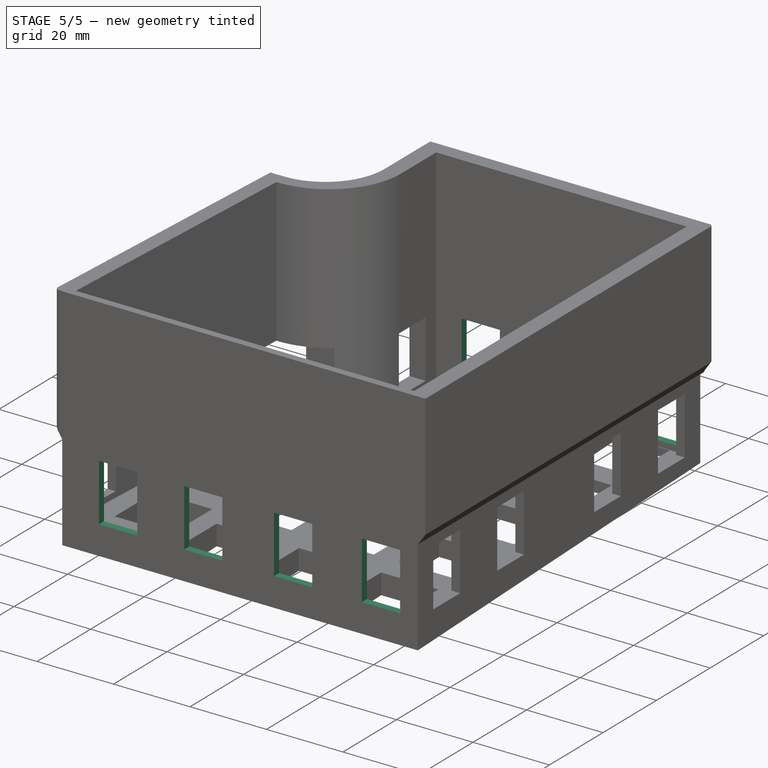
[diagram: stage 5 of 5 — iso view after this stage's code; geometry added in this stage tinted green]
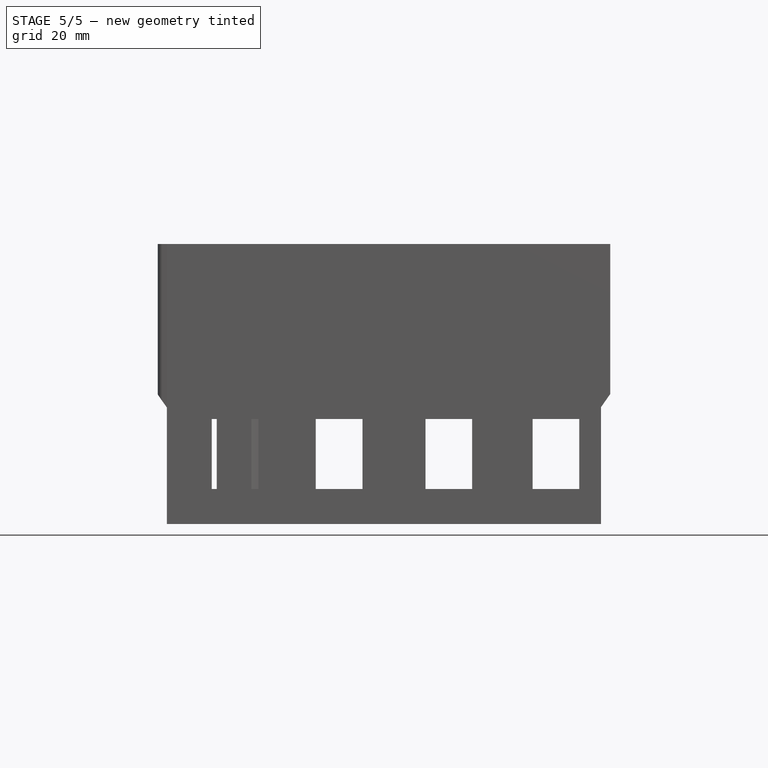
[diagram: stage 5 of 5 — front view after this stage's code; geometry added in this stage tinted green]
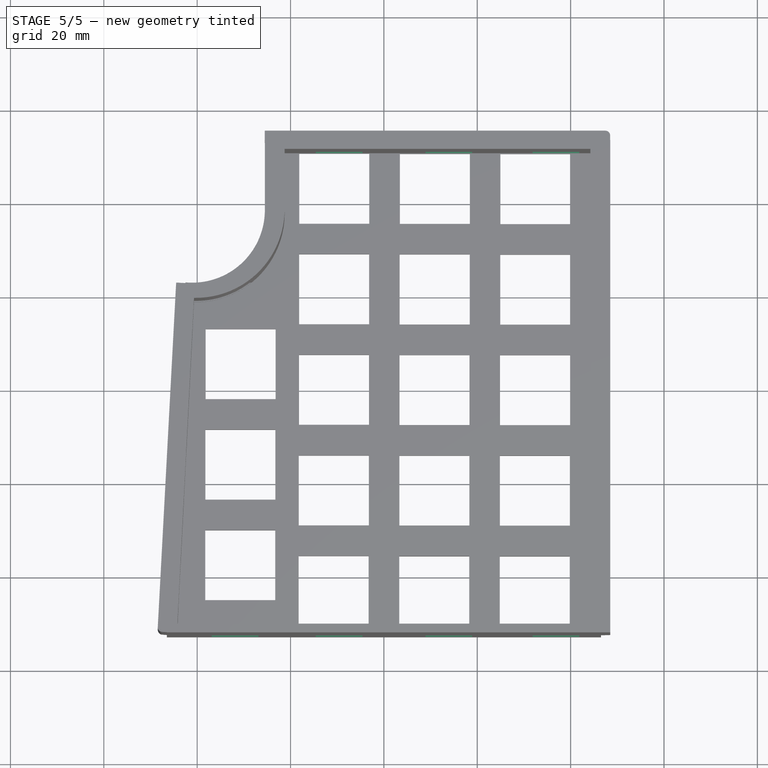
[diagram: stage 5 of 5 — top view after this stage's code; geometry added in this stage tinted green]
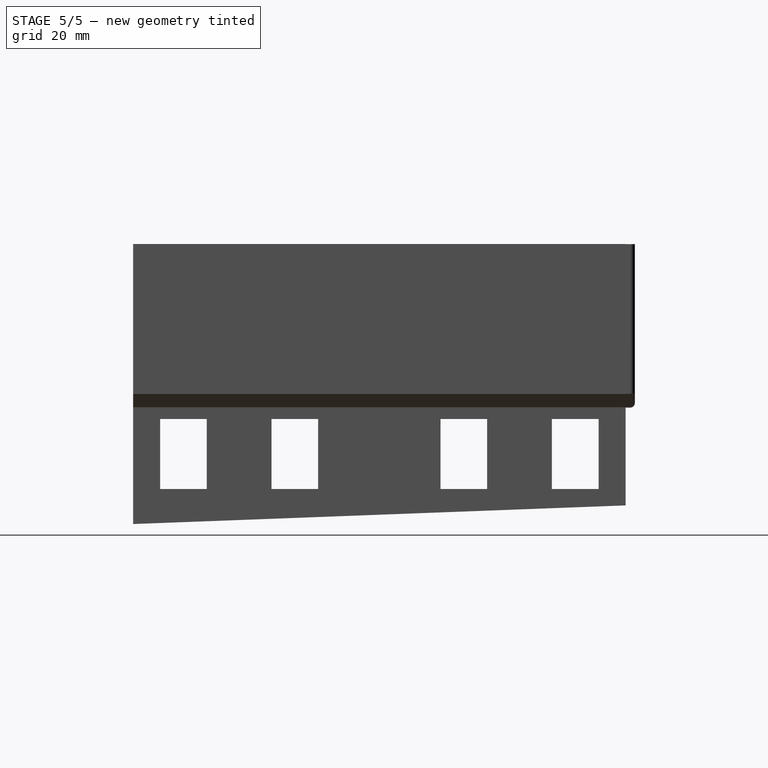
[diagram: stage 5 of 5 — right view after this stage's code; geometry added in this stage tinted green]
FEATURE [Sketcher::SketchObject] Sketch010
  Placement = pos=(0,52.75,0) rot=(1,0,0;1.5708rad)
  Support = -> Pocket005 [Face62]
  sketch-geometry (12):
    g0: LineSegment StartX=-44.877 StartY=22.5 StartZ=0 EndX=-24.877 EndY=22.5 EndZ=0
    g1: LineSegment StartX=-24.877 StartY=22.5 StartZ=0 EndX=-24.877 EndY=7.5 EndZ=0
    g2: LineSegment StartX=-24.877 StartY=7.5 StartZ=0 EndX=-44.877 EndY=7.5 EndZ=0
    g3: LineSegment StartX=-44.877 StartY=7.5 StartZ=0 EndX=-44.877 EndY=22.5 EndZ=0
    g4: LineSegment StartX=-22.1 StartY=22.5 StartZ=0 EndX=-2.1 EndY=22.5 EndZ=0
    g5: LineSegment StartX=-2.1 StartY=22.5 StartZ=0 EndX=-2.1 EndY=7.5 EndZ=0
    g6: LineSegment StartX=-2.1 StartY=7.5 StartZ=0 EndX=-22.1 EndY=7.5 EndZ=0
    g7: LineSegment StartX=-22.1 StartY=7.5 StartZ=0 EndX=-22.1 EndY=22.5 EndZ=0
    g8: LineSegment StartX=30.7016 StartY=22.5 StartZ=0 EndX=40.7016 EndY=22.5 EndZ=0
    g9: LineSegment StartX=40.7016 StartY=22.5 StartZ=0 EndX=40.7016 EndY=7.5 EndZ=0
    g10: LineSegment StartX=40.7016 StartY=7.5 StartZ=0 EndX=30.7016 EndY=7.5 EndZ=0
    g11: LineSegment StartX=30.7016 StartY=7.5 StartZ=0 EndX=30.7016 EndY=22.5 EndZ=0
  constraints (39):
    c: Coincident(g0,g1)
    c: Coincident(g1,g2)
    c: Coincident(g2,g3)
    c: Coincident(g3,g0)
    c: Horizontal(g0)
    c: Horizontal(g2)
    c: Vertical(g1)
    c: Vertical(g3)
    c: Coincident(g4,g5)
    c: Coincident(g5,g6)
    c: Coincident(g6,g7)
    c: Coincident(g7,g4)
    c: Horizontal(g4)
    c: Horizontal(g6)
    c: Vertical(g5)
    c: Vertical(g7)
    c: Coincident(g8,g9)
    c: Coincident(g9,g10)
    c: Coincident(g10,g11)
    c: Coincident(g11,g8)
    c: Horizontal(g8)
    c: Horizontal(g10)
    c: Vertical(g9)
    c: Vertical(g11)
    c: Equal(g8,g10)
    c: DistanceX(g8,g8) = 10
    c: Equal(g9,g11)
    c: DistanceY(g11,g11) = 15
    c: DistanceY(g-1,g10) = 7.5
    c: Equal(g6,g4)
    c: DistanceX(g4,g4) = 20
    c: Equal(g5,g7)
    c: DistanceY(g5,g5) = 15
    c: DistanceY(g-1,g6) = 7.5
    c: Equal(g1,g3)
    c: Equal(g0,g2)
    c: DistanceX(g0,g0) = 20
    c: DistanceY(g3,g3) = 15
    c: DistanceY(g-1,g2) = 7.5
FEATURE [PartDesign::Pocket] Pocket006
  Length = 5
  Sketch = -> Sketch010
  Type = 1
FEATURE [Sketcher::SketchObject] Sketch011
  Placement = pos=(0,-52.75,0) rot=(1,0,0;1.5708rad)
  Support = -> Pocket006 [Face15]
  sketch-geometry (4):
    g0: LineSegment StartX=-36.8868 StartY=22.5 StartZ=0 EndX=-26.8868 EndY=22.5 EndZ=0
    g1: LineSegment StartX=-26.8868 StartY=22.5 StartZ=0 EndX=-26.8868 EndY=7.5 EndZ=0
    g2: LineSegment StartX=-26.8868 StartY=7.5 StartZ=0 EndX=-36.8868 EndY=7.5 EndZ=0
    g3: LineSegment StartX=-36.8868 StartY=7.5 StartZ=0 EndX=-36.8868 EndY=22.5 EndZ=0
  constraints (13):
    c: Coincident(g0,g1)
    c: Coincident(g1,g2)
    c: Coincident(g2,g3)
    c: Coincident(g3,g0)
    c: Horizontal(g0)
    c: Horizontal(g2)
    c: Vertical(g1)
    c: Vertical(g3)
    c: Equal(g0,g2)
    c: Equal(g3,g1)
    c: DistanceX(g0,g0) = 10
    c: DistanceY(g3,g3) = 15
    c: DistanceY(g-1,g1) = 7.5
FEATURE [PartDesign::Pocket] Pocket007
  Length = 5
  Sketch = -> Sketch011
  Type = 0
FEATURE [Sketcher::SketchObject] Sketch012
  Placement = pos=(0,52.75,0) rot=(0,0.707107,0.707107;3.14159rad)
  Support = -> Pocket007 [Face66]
  sketch-geometry (12):
    g0: LineSegment StartX=-41.8571 StartY=22.5 StartZ=0 EndX=-31.8571 EndY=22.5 EndZ=0
    g1: LineSegment StartX=-31.8571 StartY=22.5 StartZ=0 EndX=-31.8571 EndY=7.5 EndZ=0
    g2: LineSegment StartX=-31.8571 StartY=7.5 StartZ=0 EndX=-41.8571 EndY=7.5 EndZ=0
    g3: LineSegment StartX=-41.8571 StartY=7.5 StartZ=0 EndX=-41.8571 EndY=22.5 EndZ=0
    g4: LineSegment StartX=-18.9 StartY=22.5 StartZ=0 EndX=-8.9 EndY=22.5 EndZ=0
    g5: LineSegment StartX=-8.9 StartY=22.5 StartZ=0 EndX=-8.9 EndY=7.5 EndZ=0
    g6: LineSegment StartX=-8.9 StartY=7.5 StartZ=0 EndX=-18.9 EndY=7.5 EndZ=0
    g7: LineSegment StartX=-18.9 StartY=7.5 StartZ=0 EndX=-18.9 EndY=22.5 EndZ=0
    g8: LineSegment StartX=4.59692 StartY=22.5 StartZ=0 EndX=14.5969 EndY=22.5 EndZ=0
    g9: LineSegment StartX=14.5969 StartY=22.5 StartZ=0 EndX=14.5969 EndY=7.5 EndZ=0
    g10: LineSegment StartX=14.5969 StartY=7.5 StartZ=0 EndX=4.59692 EndY=7.5 EndZ=0
    g11: LineSegment StartX=4.59692 StartY=7.5 StartZ=0 EndX=4.59692 EndY=22.5 EndZ=0
  constraints (38):
    c: Coincident(g0,g1)
    c: Coincident(g1,g2)
    c: Coincident(g2,g3)
    c: Coincident(g3,g0)
    c: Horizontal(g0)
    c: Horizontal(g2)
    c: Vertical(g1)
    c: Vertical(g3)
    c: Coincident(g4,g5)
    c: Coincident(g5,g6)
    c: Coincident(g6,g7)
    c: Coincident(g7,g4)
    c: Horizontal(g4)
    c: Horizontal(g6)
    c: Vertical(g5)
    c: Vertical(g7)
    c: Coincident(g8,g9)
    c: Coincident(g9,g10)
    c: Coincident(g10,g11)
    c: Coincident(g11,g8)
    c: Horizontal(g8)
    c: Horizontal(g10)
    c: Vertical(g9)
    c: Vertical(g11)
    c: Equal(g0,g2)
    c: DistanceX(g0,g0) = 10
    c: DistanceY(g3,g3) = 15
    c: DistanceY(g-1,g1) = 7.5
    c: Equal(g4,g6)
    c: Equal(g8,g10)
    c: Equal(g7,g5)
    c: Equal(g11,g9)
    c: DistanceX(g4,g4) = 10
    c: DistanceX(g8,g8) = 10
    c: DistanceY(g7,g7) = 15
    c: DistanceY(g11,g11) = 15
    c: DistanceY(g-1,g5) = 7.5
    c: DistanceY(g-1,g9) = 7.5
FEATURE [PartDesign::Pocket] Pocket008
  Length = 5
  Sketch = -> Sketch012
  Type = 1
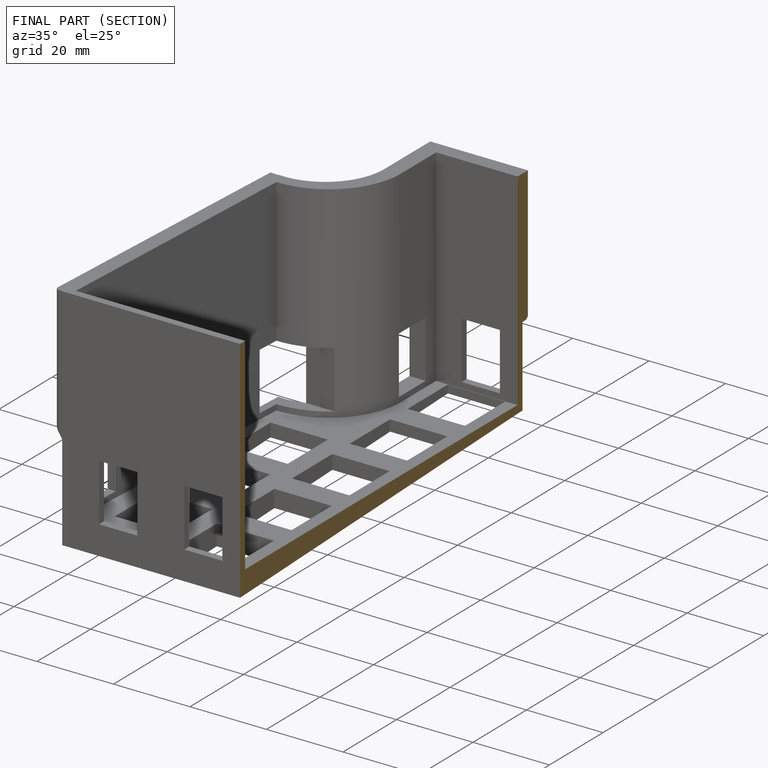
[diagram: finished part — half-section view (interior)]
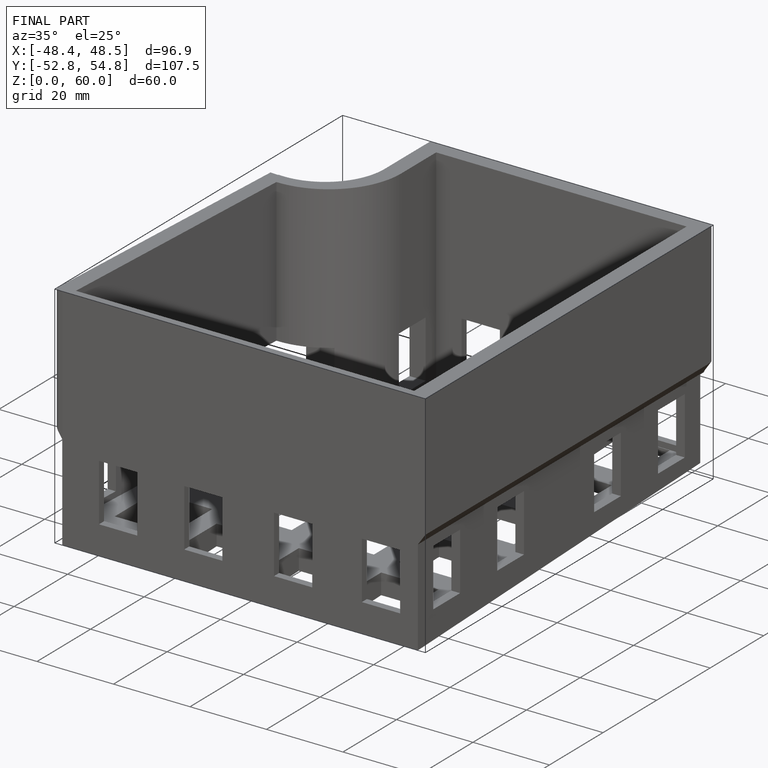
[diagram: finished part — iso view with bounding-box wireframe]
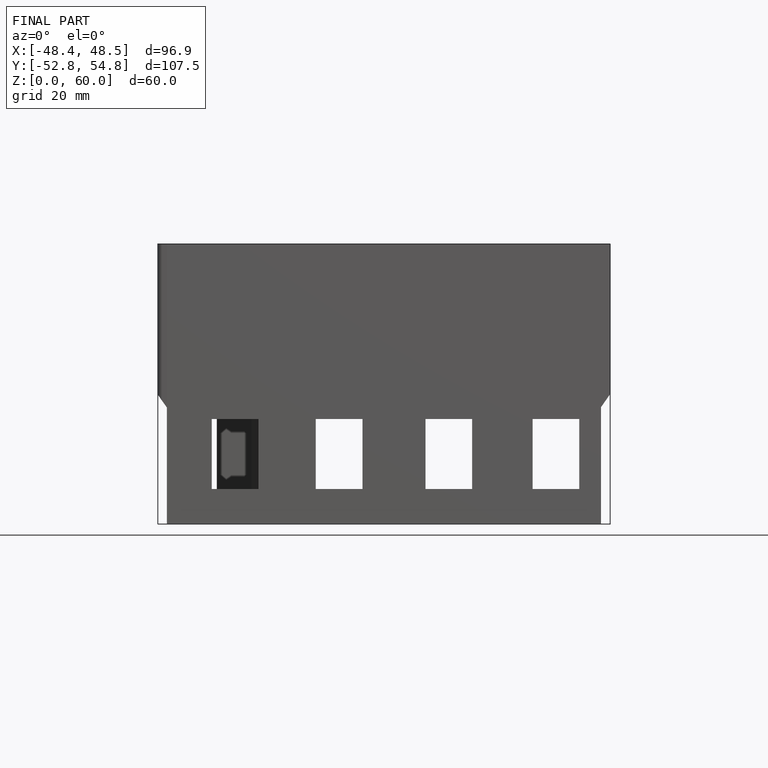
[diagram: finished part — front view with bounding-box wireframe]
